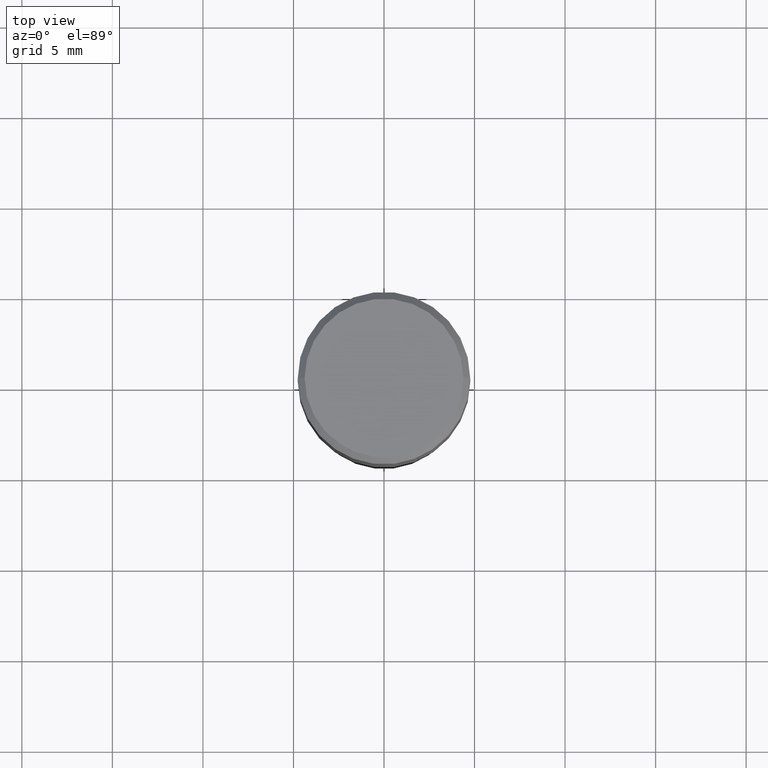
[diagram: clean part render]
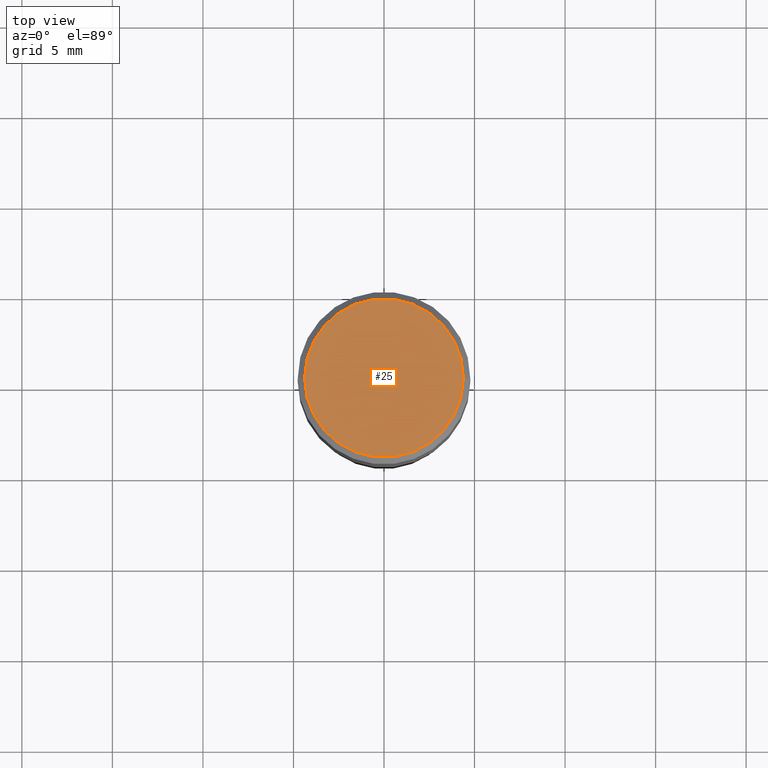
[diagram: same view with one face highlighted and labeled with its STEP entity id]
A machine part, top view. The second image highlights one B-rep face of the part: STEP entity #25.
In plain terms, the highlighted planar face has unit normal (0, -0, -1).
Its self-contained STEP definition (entity closure, byte-faithful):
#25 = ADVANCED_FACE ( 'NONE', ( #178 ), #455, .F. ) ;
#37 = ORIENTED_EDGE ( 'NONE', *, *, #170, .T. ) ;
#39 = AXIS2_PLACEMENT_3D ( 'NONE', #139, #382, #207 ) ;
#58 = CIRCLE ( 'NONE', #311, 0.1725000000000000144 ) ;
#64 = DIRECTION ( 'NONE',  ( -2.445468806185136597E-29, 3.491481338843145583E-15, 1.000000000000000000 ) ) ;
#93 = CARTESIAN_POINT ( 'NONE',  ( -0.1725000000000000144, 1.230747171942204192E-15, -2.636744989016075847E-17 ) ) ;
#101 = CIRCLE ( 'NONE', #129, 0.1725000000000000144 ) ;
#129 = AXIS2_PLACEMENT_3D ( 'NONE', #412, #64, #202 ) ;
#139 = CARTESIAN_POINT ( 'NONE',  ( 1.204561061900881047E-15, 0.1725000000000000144, -6.154642558955188135E-16 ) ) ;
#147 = VERTEX_POINT ( 'NONE', #93 ) ;
#170 = EDGE_CURVE ( 'NONE', #453, #147, #58, .T. ) ;
#178 = FACE_OUTER_BOUND ( 'NONE', #277, .T. ) ;
#202 = DIRECTION ( 'NONE',  ( 1.000000000000000000, -6.982962677686266711E-15, 4.876912640186324808E-29 ) ) ;
#207 = DIRECTION ( 'NONE',  ( -1.000000000000000000, 6.982962677686265922E-15, -4.876176775795935793E-29 ) ) ;
#218 = CARTESIAN_POINT ( 'NONE',  ( 6.448077620501702025E-46, -9.206145924434830208E-32, -2.636744989015224123E-17 ) ) ;
#277 = EDGE_LOOP ( 'NONE', ( #279, #37 ) ) ;
#279 = ORIENTED_EDGE ( 'NONE', *, *, #434, .T. ) ;
#285 = DIRECTION ( 'NONE',  ( -2.445468806185136597E-29, 3.491481338843145583E-15, 1.000000000000000000 ) ) ;
#307 = CARTESIAN_POINT ( 'NONE',  ( 0.1725000000000000144, -1.261075749640199308E-15, -2.636744989014362231E-17 ) ) ;
#311 = AXIS2_PLACEMENT_3D ( 'NONE', #218, #285, #330 ) ;
#330 = DIRECTION ( 'NONE',  ( 1.000000000000000000, -6.982962677686266711E-15, 4.876912640186324808E-29 ) ) ;
#382 = DIRECTION ( 'NONE',  ( 2.438088387897960049E-29, -3.491481338843145188E-15, -1.000000000000000000 ) ) ;
#412 = CARTESIAN_POINT ( 'NONE',  ( 6.448077620501702025E-46, -9.206145924434830208E-32, -2.636744989015224123E-17 ) ) ;
#434 = EDGE_CURVE ( 'NONE', #147, #453, #101, .T. ) ;
#453 = VERTEX_POINT ( 'NONE', #307 ) ;
#455 = PLANE ( 'NONE',  #39 ) ;